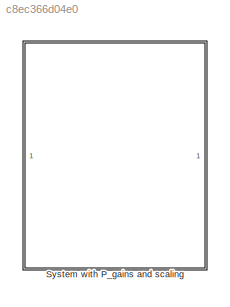
MODEL slx_c8ec366d04e0
KIND model
CONFIG AbsTol = auto
CONFIG EnableMultiTasking = off
CONFIG FixedStep = auto
CONFIG MaxStep = auto
CONFIG MinStep = auto
CONFIG RelTol = 1e-3
CONFIG SampleTimeConstraint = Unconstrained
CONFIG Solver = VariableStepAuto
CONFIG SolverName = VariableStepAuto
CONFIG StartTime = 0.0
CONFIG StopTime = 10.0
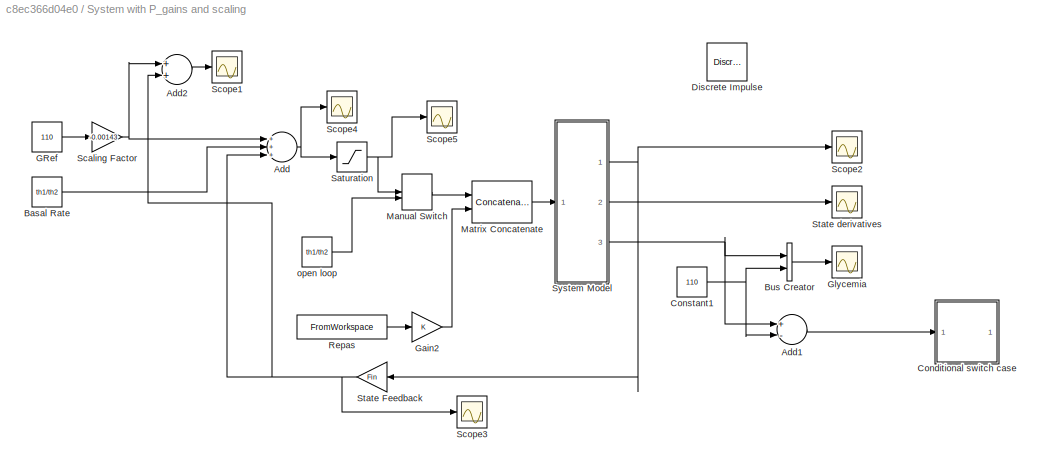
BLOCK [SubSystem] System with P_gains and scaling
  Ports = []
  RequestExecContextInheritance = off
BLOCK [Sum] System with P_gains and scaling/Add
  InputSameDT = off
  Inputs = +++
  OutDataTypeStr = Inherit: Inherit via internal rule
  Ports = [3, 1]
  SaturateOnIntegerOverflow = off
BLOCK [Sum] System with P_gains and scaling/Add1
  InputSameDT = off
  Inputs = +-
  OutDataTypeStr = Inherit: Inherit via internal rule
  Ports = [2, 1]
  SaturateOnIntegerOverflow = off
BLOCK [Sum] System with P_gains and scaling/Add2
  InputSameDT = off
  OutDataTypeStr = Inherit: Inherit via internal rule
  Ports = [2, 1]
  SaturateOnIntegerOverflow = off
BLOCK [Constant] System with P_gains and scaling/Basal Rate
  Value = th1/th2
  VectorParams1D = off
BLOCK [BusCreator] System with P_gains and scaling/Bus Creator
  DisplayOption = bar
  InheritFromInputs = on
  Inputs = 2
  Ports = [2, 1]
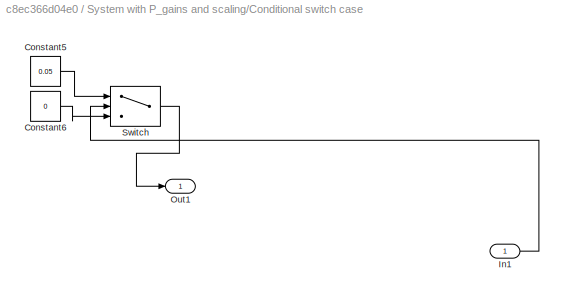
BLOCK [SubSystem] System with P_gains and scaling/Conditional switch case
  Ports = [1, 1]
  RequestExecContextInheritance = off
BLOCK [Constant] System with P_gains and scaling/Conditional switch case/Constant5
  Value = 0.05
BLOCK [Constant] System with P_gains and scaling/Conditional switch case/Constant6
  Value = 0
BLOCK [Inport] System with P_gains and scaling/Conditional switch case/In1
  IconDisplay = Port number
BLOCK [Outport] System with P_gains and scaling/Conditional switch case/Out1
  IconDisplay = Port number
BLOCK [Switch] System with P_gains and scaling/Conditional switch case/Switch
  Criteria = u2 > Threshold
  InputSameDT = off
  SaturateOnIntegerOverflow = off
  ZeroCross = off
BLOCK [Constant] System with P_gains and scaling/Constant1
  Value = 110
BLOCK [Reference] System with P_gains and scaling/Discrete Impulse  REF=dspsrcs4/Discrete 
Impulse
  Ports = [0, 1]
  SourceBlock = dspsrcs4/Discrete \nImpulse
  SourceProductBaseCode = DS
  SourceProductName = DSP System Toolbox
  SourceType = Discrete Impulse
BLOCK [Constant] System with P_gains and scaling/GRef
  Value = 110
BLOCK [Gain] System with P_gains and scaling/Gain2
  OutDataTypeStr = Inherit: Inherit via internal rule
  ParamDataTypeStr = Inherit: Inherit via internal rule
  SaturateOnIntegerOverflow = off
BLOCK [Scope] System with P_gains and scaling/Glycemia
  Floating = off
  NumInputPorts = 1
  Ports = [1]
  ScopeSpecificationString = Simulink.scopes.TimeScopeBlockCfg('CurrentConfiguration', extmgr.ConfigurationSet(extmgr.Configuration('Core','General UI',true),extmgr.Configuration('Core','Source UI',true),extmgr.Configuration('Sources','WiredSimulink',true,'DataLoggingVariableName','ScopeData1'),extmgr.Configuration('Visuals','Time Domain',true,'SerializedDisplays',{struct('MinYLimReal','82.22453','MaxYLimReal','359.9792','YLa...<+1560ch>
BLOCK [ManualSwitch] System with P_gains and scaling/Manual Switch
BLOCK [Concatenate] System with P_gains and scaling/Matrix Concatenate
  ConcatenateDimension = 2
  Ports = [2, 1]
BLOCK [FromWorkspace] System with P_gains and scaling/Repas
  SampleTime = 0
  VariableName = [temps'  repas']
  ZeroCross = on
BLOCK [Saturate] System with P_gains and scaling/Saturation
  InputPortMap = u0
  LowerLimit = 0
  Ports = [1, 1]
  UpperLimit = 2
BLOCK [Gain] System with P_gains and scaling/Scaling Factor
  Gain = -0.00143
  OutDataTypeStr = Inherit: Inherit via internal rule
  ParamDataTypeStr = Inherit: Inherit via internal rule
  SaturateOnIntegerOverflow = off
BLOCK [Scope] System with P_gains and scaling/Scope1
  Floating = off
  NumInputPorts = 1
  Ports = [1]
  ScopeSpecificationString = Simulink.scopes.TimeScopeBlockCfg('CurrentConfiguration', extmgr.ConfigurationSet(extmgr.Configuration('Core','General UI',true),extmgr.Configuration('Core','Source UI',true),extmgr.Configuration('Sources','WiredSimulink',true,'DataLoggingVariableName','ScopeData1'),extmgr.Configuration('Visuals','Time Domain',true,'SerializedDisplays',{struct('MinYLimReal','-0.01171','MaxYLimReal','0.10543','YLab...<+1489ch>
BLOCK [Scope] System with P_gains and scaling/Scope2
  Floating = off
  NumInputPorts = 1
  Ports = [1]
  ScopeSpecificationString = Simulink.scopes.TimeScopeBlockCfg('CurrentConfiguration', extmgr.ConfigurationSet(extmgr.Configuration('Core','General UI',true),extmgr.Configuration('Core','Source UI',true),extmgr.Configuration('Sources','WiredSimulink',true,'DataLoggingVariableName','ScopeData2'),extmgr.Configuration('Visuals','Time Domain',true,'SerializedDisplays',{struct('MinYLimReal','-2.53715','MaxYLimReal','2.10584','YLab...<+1639ch>
BLOCK [Scope] System with P_gains and scaling/Scope3
  Floating = off
  NumInputPorts = 1
  Ports = [1]
  ScopeSpecificationString = Simulink.scopes.TimeScopeBlockCfg('CurrentConfiguration', extmgr.ConfigurationSet(extmgr.Configuration('Core','General UI',true),extmgr.Configuration('Core','Source UI',true),extmgr.Configuration('Sources','WiredSimulink',true,'DataLoggingVariableName','ScopeData1'),extmgr.Configuration('Visuals','Time Domain',true,'SerializedDisplays',{struct('MinYLimReal','0.14559','MaxYLimReal','0.26273','YLabe...<+1486ch>
BLOCK [Scope] System with P_gains and scaling/Scope4
  Floating = off
  NumInputPorts = 1
  Ports = [1]
  ScopeSpecificationString = Simulink.scopes.TimeScopeBlockCfg('CurrentConfiguration', extmgr.ConfigurationSet(extmgr.Configuration('Core','General UI',true),extmgr.Configuration('Core','Source UI',true),extmgr.Configuration('Sources','WiredSimulink',true,'DataLoggingVariableName','ScopeData2'),extmgr.Configuration('Visuals','Time Domain',true,'SerializedDisplays',{struct('MinYLimReal','-4.59705','MaxYLimReal','0.57345','YLab...<+1433ch>
BLOCK [Scope] System with P_gains and scaling/Scope5
  Floating = off
  NumInputPorts = 1
  Ports = [1]
  ScopeSpecificationString = Simulink.scopes.TimeScopeBlockCfg('CurrentConfiguration', extmgr.ConfigurationSet(extmgr.Configuration('Core','General UI',true),extmgr.Configuration('Core','Source UI',true),extmgr.Configuration('Sources','WiredSimulink',true,'DataLoggingVariableName','ScopeData3'),extmgr.Configuration('Visuals','Time Domain',true,'SerializedDisplays',{struct('MinYLimReal','0.00699','MaxYLimReal','0.02699','YLabe...<+1438ch>
BLOCK [Gain] System with P_gains and scaling/State Feedback
  Gain = Fin
  Multiplication = Matrix(K*u)
  OutDataTypeStr = Inherit: Inherit via internal rule
  ParamDataTypeStr = Inherit: Inherit via internal rule
  SaturateOnIntegerOverflow = off
BLOCK [Scope] System with P_gains and scaling/State derivatives
  Floating = off
  NumInputPorts = 1
  Ports = [1]
  ScopeSpecificationString = Simulink.scopes.TimeScopeBlockCfg('CurrentConfiguration', extmgr.ConfigurationSet(extmgr.Configuration('Core','General UI',true),extmgr.Configuration('Core','Source UI',true),extmgr.Configuration('Sources','WiredSimulink',true),extmgr.Configuration('Visuals','Time Domain',true,'SerializedDisplays',{struct('MinYLimReal','-0.00046','MaxYLimReal','0.0003','YLabelReal','','MinYLimMag','0.00000','MaxYL...<+1582ch>
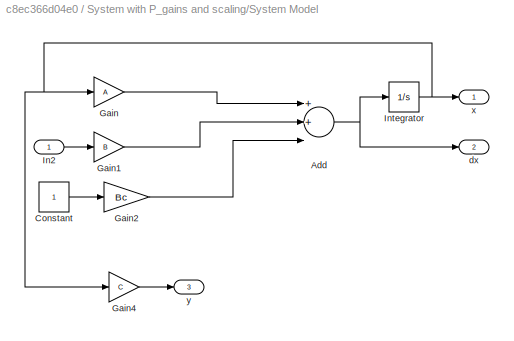
BLOCK [SubSystem] System with P_gains and scaling/System Model
  Ports = [1, 3]
  RequestExecContextInheritance = off
BLOCK [Sum] System with P_gains and scaling/System Model/Add
  InputSameDT = off
  Inputs = 3
  OutDataTypeStr = Inherit: Inherit via internal rule
  Ports = [3, 1]
  SaturateOnIntegerOverflow = off
BLOCK [Constant] System with P_gains and scaling/System Model/Constant
BLOCK [Gain] System with P_gains and scaling/System Model/Gain
  Gain = A
  Multiplication = Matrix(K*u)
  OutDataTypeStr = Inherit: Inherit via internal rule
  ParamDataTypeStr = Inherit: Inherit via internal rule
  SaturateOnIntegerOverflow = off
BLOCK [Gain] System with P_gains and scaling/System Model/Gain1
  Gain = B
  Multiplication = Matrix(K*u)
  OutDataTypeStr = Inherit: Inherit via internal rule
  ParamDataTypeStr = Inherit: Inherit via internal rule
  SaturateOnIntegerOverflow = off
BLOCK [Gain] System with P_gains and scaling/System Model/Gain2
  Gain = Bc
  Multiplication = Matrix(K*u)
  OutDataTypeStr = Inherit: Inherit via internal rule
  ParamDataTypeStr = Inherit: Inherit via internal rule
  SaturateOnIntegerOverflow = off
BLOCK [Gain] System with P_gains and scaling/System Model/Gain4
  Gain = C
  Multiplication = Matrix(K*u)
  OutDataTypeStr = Inherit: Inherit via internal rule
  ParamDataTypeStr = Inherit: Inherit via internal rule
  SaturateOnIntegerOverflow = off
BLOCK [Inport] System with P_gains and scaling/System Model/In2
  IconDisplay = Port number
BLOCK [Integrator] System with P_gains and scaling/System Model/Integrator
  InitialCondition = x0
  Ports = [1, 1]
  ZeroCross = off
BLOCK [Outport] System with P_gains and scaling/System Model/dx
  IconDisplay = Port number
  Port = 2
BLOCK [Outport] System with P_gains and scaling/System Model/x
  IconDisplay = Port number
BLOCK [Outport] System with P_gains and scaling/System Model/y
  IconDisplay = Port number
  Port = 3
BLOCK [Constant] System with P_gains and scaling/open loop
  Value = th1/th2
LINE System with P_gains and scaling/Add1:1 -> System with P_gains and scaling/Conditional switch case:1
LINE System with P_gains and scaling/Add2:1 -> System with P_gains and scaling/Scope1:1
NET System with P_gains and scaling/Add:1 -> System with P_gains and scaling/Saturation:1, System with P_gains and scaling/Scope4:1
LINE System with P_gains and scaling/Basal Rate:1 -> System with P_gains and scaling/Add:2
LINE System with P_gains and scaling/Bus Creator:1 -> System with P_gains and scaling/Glycemia:1
LINE System with P_gains and scaling/Conditional switch case/Constant5:1 -> System with P_gains and scaling/Conditional switch case/Switch:1
LINE System with P_gains and scaling/Conditional switch case/Constant6:1 -> System with P_gains and scaling/Conditional switch case/Switch:3
LINE System with P_gains and scaling/Conditional switch case/In1:1 -> System with P_gains and scaling/Conditional switch case/Switch:2
LINE System with P_gains and scaling/Conditional switch case/Switch:1 -> System with P_gains and scaling/Conditional switch case/Out1:1
NET System with P_gains and scaling/Constant1:1 -> System with P_gains and scaling/Add1:2, System with P_gains and scaling/Bus Creator:2
LINE System with P_gains and scaling/GRef:1 -> System with P_gains and scaling/Scaling Factor:1
LINE System with P_gains and scaling/Gain2:1 -> System with P_gains and scaling/Matrix Concatenate:2
LINE System with P_gains and scaling/Manual Switch:1 -> System with P_gains and scaling/Matrix Concatenate:1
LINE System with P_gains and scaling/Matrix Concatenate:1 -> System with P_gains and scaling/System Model:1
LINE System with P_gains and scaling/Repas:1 -> System with P_gains and scaling/Gain2:1
NET System with P_gains and scaling/Saturation:1 -> System with P_gains and scaling/Manual Switch:1, System with P_gains and scaling/Scope5:1
NET System with P_gains and scaling/Scaling Factor:1 -> System with P_gains and scaling/Add2:1, System with P_gains and scaling/Add:1
NET System with P_gains and scaling/State Feedback:1 -> System with P_gains and scaling/Add2:2, System with P_gains and scaling/Add:3, System with P_gains and scaling/Scope3:1
NET System with P_gains and scaling/System Model/Add:1 -> System with P_gains and scaling/System Model/Integrator:1, System with P_gains and scaling/System Model/dx:1
LINE System with P_gains and scaling/System Model/Constant:1 -> System with P_gains and scaling/System Model/Gain2:1
LINE System with P_gains and scaling/System Model/Gain1:1 -> System with P_gains and scaling/System Model/Add:2
LINE System with P_gains and scaling/System Model/Gain2:1 -> System with P_gains and scaling/System Model/Add:3
LINE System with P_gains and scaling/System Model/Gain4:1 -> System with P_gains and scaling/System Model/y:1
LINE System with P_gains and scaling/System Model/Gain:1 -> System with P_gains and scaling/System Model/Add:1
LINE System with P_gains and scaling/System Model/In2:1 -> System with P_gains and scaling/System Model/Gain1:1
NET System with P_gains and scaling/System Model/Integrator:1 -> System with P_gains and scaling/System Model/Gain4:1, System with P_gains and scaling/System Model/Gain:1, System with P_gains and scaling/System Model/x:1
NET System with P_gains and scaling/System Model:1 -> System with P_gains and scaling/Scope2:1, System with P_gains and scaling/State Feedback:1
LINE System with P_gains and scaling/System Model:2 -> System with P_gains and scaling/State derivatives:1
NET System with P_gains and scaling/System Model:3 -> System with P_gains and scaling/Add1:1, System with P_gains and scaling/Bus Creator:1
LINE System with P_gains and scaling/open loop:1 -> System with P_gains and scaling/Manual Switch:2
note: NET lines group one-source signal fan-out (src -> all destinations, sorted); 1:1 wires keep LINE
